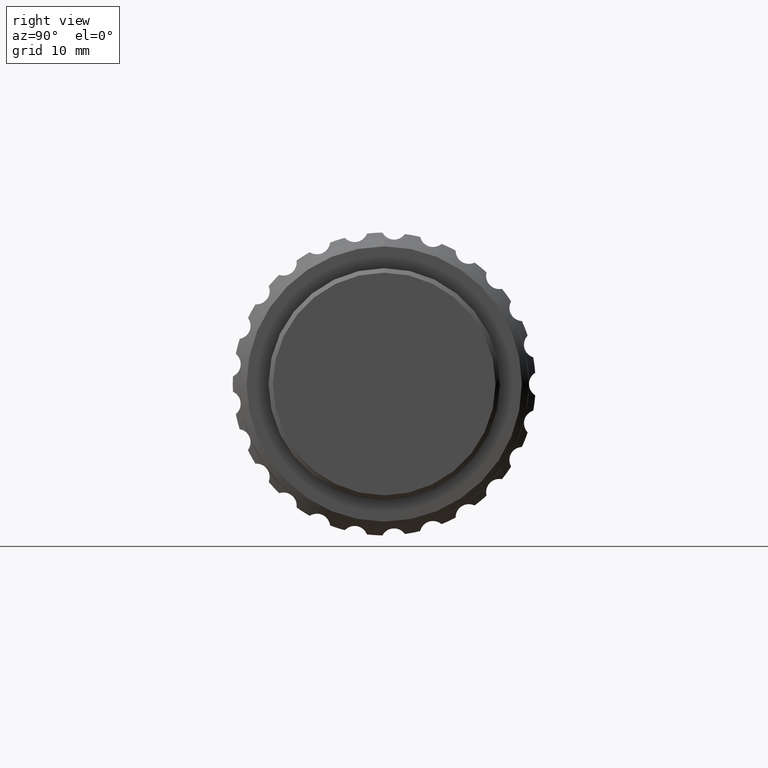
[diagram: clean part render]
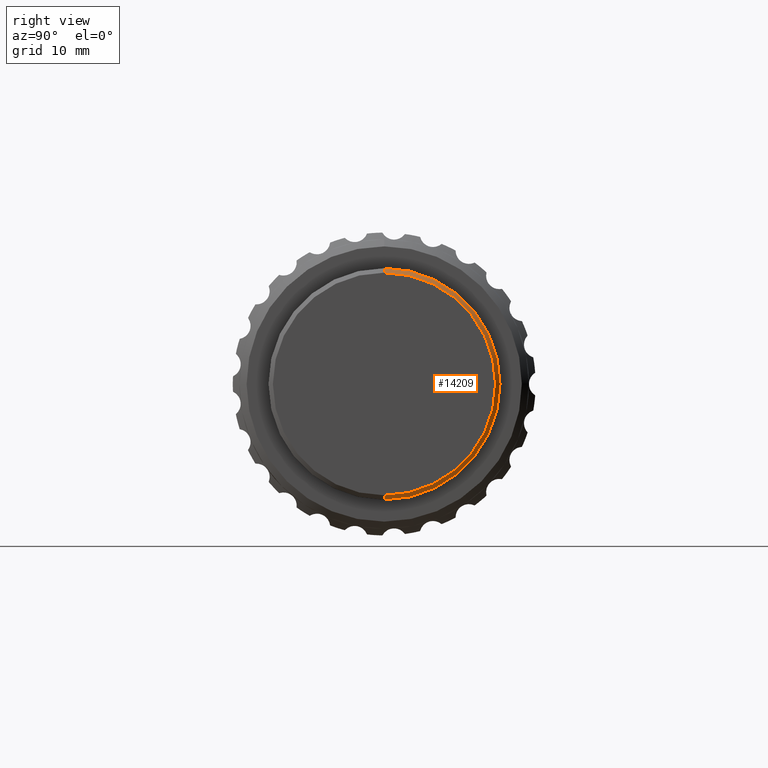
[diagram: same view with one face highlighted and labeled with its STEP entity id]
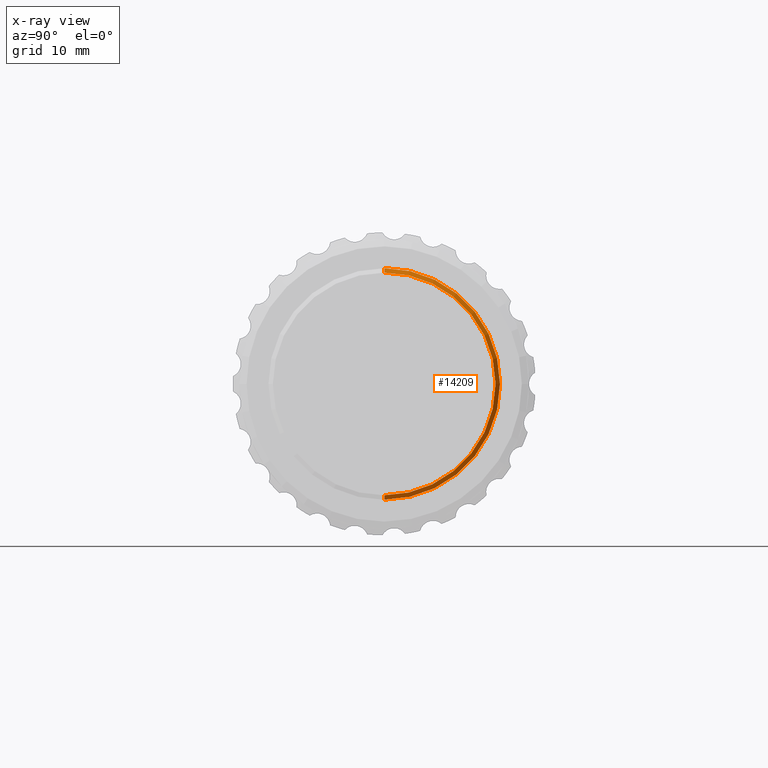
[diagram: x-ray of the same camera — body ghosted, the highlighted face saturated]
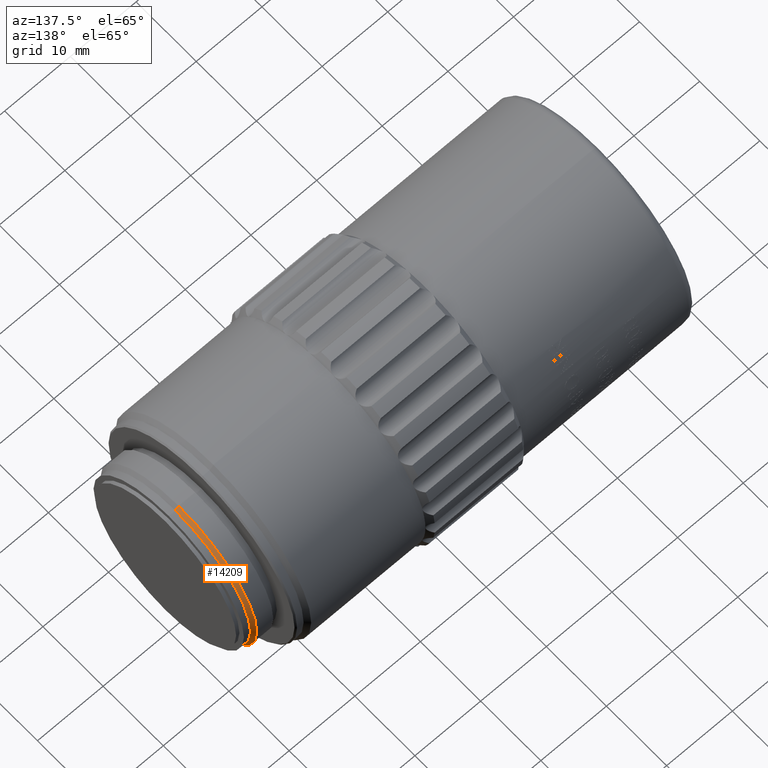
[diagram: same view with one face highlighted and labeled with its STEP entity id]
A machine part, right view. The second image highlights one B-rep face of the part: STEP entity #14209.
The next image is the same camera in x-ray: the body ghosted, the highlighted face saturated — about 0% of this face is hidden behind the body in this view.
A second angle (auxiliary view) of the same face is appended — the face is thin or edge-on in the first view.
In plain terms, the highlighted conical surface has half-angle 45 deg.
Its self-contained STEP definition (entity closure, byte-faithful):
#830 = CARTESIAN_POINT ( 'NONE',  ( 98.49999999999997158, 1.592040838891557715E-15, -12.99999999999998934 ) ) ;
#2169 = EDGE_CURVE ( 'NONE', #3379, #18081, #7613, .T. ) ;
#2191 = VERTEX_POINT ( 'NONE', #22932 ) ;
#2668 = CARTESIAN_POINT ( 'NONE',  ( 98.49999999999997158, 0.000000000000000000, 12.99999999999998934 ) ) ;
#3379 = VERTEX_POINT ( 'NONE', #15002 ) ;
#5391 = DIRECTION ( 'NONE',  ( 0.000000000000000000, 0.000000000000000000, 1.000000000000000000 ) ) ;
#6167 = CARTESIAN_POINT ( 'NONE',  ( 98.99999999999998579, 0.000000000000000000, 0.000000000000000000 ) ) ;
#6519 = AXIS2_PLACEMENT_3D ( 'NONE', #6874, #19565, #5391 ) ;
#6779 = VECTOR ( 'NONE', #23553, 1000.000000000000000 ) ;
#6874 = CARTESIAN_POINT ( 'NONE',  ( 98.49999999999997158, 0.000000000000000000, 0.000000000000000000 ) ) ;
#7613 = LINE ( 'NONE', #2668, #27368 ) ;
#9153 = CIRCLE ( 'NONE', #6519, 12.99999999999998934 ) ;
#9488 = CONICAL_SURFACE ( 'NONE', #16843, 12.99999999999998934, 0.7853981633974396193 ) ;
#10500 = EDGE_LOOP ( 'NONE', ( #18215, #11549, #31006, #12213 ) ) ;
#11163 = AXIS2_PLACEMENT_3D ( 'NONE', #6167, #27989, #30611 ) ;
#11549 = ORIENTED_EDGE ( 'NONE', *, *, #19877, .T. ) ;
#11771 = EDGE_CURVE ( 'NONE', #3379, #2191, #13795, .T. ) ;
#12213 = ORIENTED_EDGE ( 'NONE', *, *, #2169, .F. ) ;
#12419 = CARTESIAN_POINT ( 'NONE',  ( 98.49999999999997158, 0.000000000000000000, 0.000000000000000000 ) ) ;
#12582 = DIRECTION ( 'NONE',  ( 0.000000000000000000, 0.000000000000000000, 1.000000000000000000 ) ) ;
#13795 = CIRCLE ( 'NONE', #11163, 12.50000000000000000 ) ;
#14209 = ADVANCED_FACE ( 'NONE', ( #17368 ), #9488, .T. ) ;
#15002 = CARTESIAN_POINT ( 'NONE',  ( 98.99999999999998579, 0.000000000000000000, 12.50000000000000000 ) ) ;
#16843 = AXIS2_PLACEMENT_3D ( 'NONE', #12419, #19676, #12582 ) ;
#17368 = FACE_OUTER_BOUND ( 'NONE', #10500, .T. ) ;
#18081 = VERTEX_POINT ( 'NONE', #24559 ) ;
#18215 = ORIENTED_EDGE ( 'NONE', *, *, #11771, .T. ) ;
#19169 = CARTESIAN_POINT ( 'NONE',  ( 98.49999999999997158, 1.592040838891557715E-15, -12.99999999999998934 ) ) ;
#19565 = DIRECTION ( 'NONE',  ( -1.000000000000000000, -0.000000000000000000, -0.000000000000000000 ) ) ;
#19676 = DIRECTION ( 'NONE',  ( -1.000000000000000000, -0.000000000000000000, -0.000000000000000000 ) ) ;
#19877 = EDGE_CURVE ( 'NONE', #2191, #20963, #27514, .T. ) ;
#20786 = DIRECTION ( 'NONE',  ( -0.7071067811865536790, 0.000000000000000000, 0.7071067811865414665 ) ) ;
#20963 = VERTEX_POINT ( 'NONE', #19169 ) ;
#22932 = CARTESIAN_POINT ( 'NONE',  ( 98.99999999999998579, 1.530808498934191521E-15, -12.50000000000000000 ) ) ;
#23553 = DIRECTION ( 'NONE',  ( -0.7071067811865536790, 8.659560562354858902E-17, -0.7071067811865414665 ) ) ;
#24559 = CARTESIAN_POINT ( 'NONE',  ( 98.49999999999997158, 0.000000000000000000, 12.99999999999998934 ) ) ;
#26126 = EDGE_CURVE ( 'NONE', #18081, #20963, #9153, .T. ) ;
#27368 = VECTOR ( 'NONE', #20786, 1000.000000000000000 ) ;
#27514 = LINE ( 'NONE', #830, #6779 ) ;
#27989 = DIRECTION ( 'NONE',  ( -1.000000000000000000, -0.000000000000000000, -0.000000000000000000 ) ) ;
#30611 = DIRECTION ( 'NONE',  ( 0.000000000000000000, 0.000000000000000000, 1.000000000000000000 ) ) ;
#31006 = ORIENTED_EDGE ( 'NONE', *, *, #26126, .F. ) ;